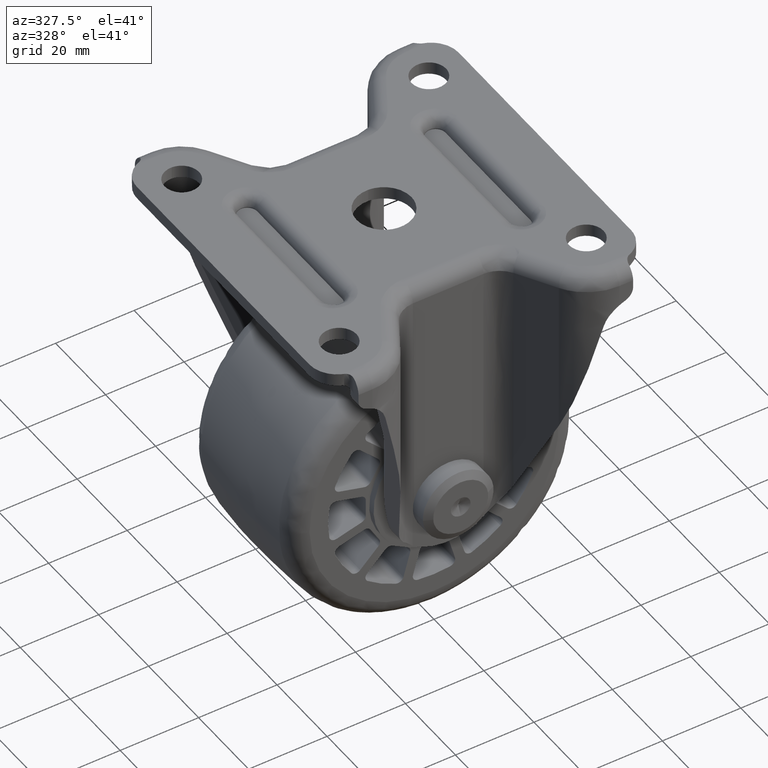
[diagram: clean part render]
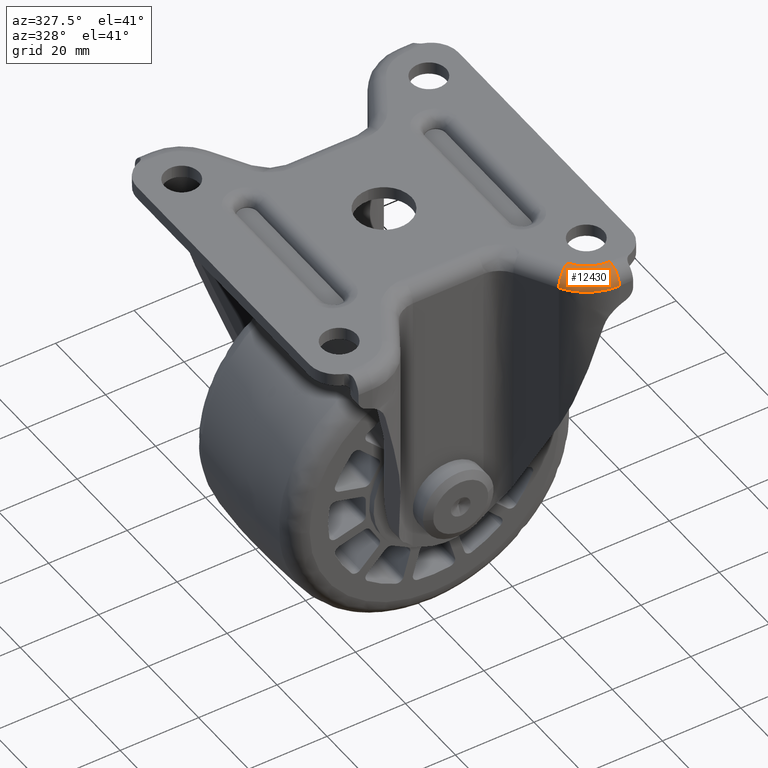
[diagram: same view with one face highlighted and labeled with its STEP entity id]
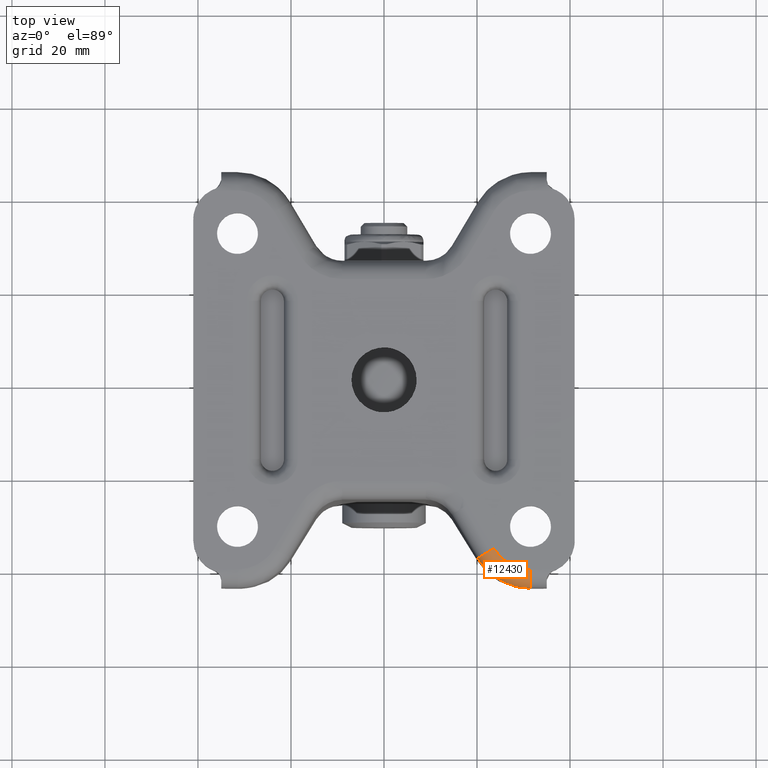
[diagram: same view with one face highlighted and labeled with its STEP entity id]
A machine part, auxiliary view. The second image highlights one B-rep face of the part: STEP entity #12430.
A second angle (top view) of the same face is appended — the face is thin or edge-on in the first view.
In plain terms, the highlighted face is a freeform B-spline surface patch.
Its self-contained STEP definition (entity closure, byte-faithful):
#12332=CARTESIAN_POINT('',(20.182173826665501,-38.293392412047062,-4.0));
#12333=VERTEX_POINT('',#12332);
#12334=CARTESIAN_POINT('',(23.620822159081300,-36.249940027973949,0.0));
#12335=VERTEX_POINT('',#12334);
#12336=CARTESIAN_POINT('',(20.182173826665480,-38.293392412047048,-4.0));
#12337=CARTESIAN_POINT('',(20.182173867288256,-38.293392480405572,-2.343145750507619));
#12338=CARTESIAN_POINT('',(21.189330645737030,-37.694879134142383,-1.171572875253811));
#12339=CARTESIAN_POINT('',(22.196487424185801,-37.096365787879186,-4.336809E-015));
#12340=CARTESIAN_POINT('',(23.620822159081289,-36.249940027973942,-4.336809E-015));
#12348=(BOUNDED_CURVE()B_SPLINE_CURVE(2,(#12336,#12337,#12338,#12339,#12340),.UNSPECIFIED.,.F.,.U.)B_SPLINE_CURVE_WITH_KNOTS((3,2,3),(0.0,0.500000000000000,1.0),.UNSPECIFIED.)CURVE()GEOMETRIC_REPRESENTATION_ITEM()RATIONAL_B_SPLINE_CURVE((1.0,0.923879532511287,1.0,0.923879532511287,1.0))REPRESENTATION_ITEM(''));
#12349=EDGE_CURVE('',#12333,#12335,#12348,.T.);
#12365=CARTESIAN_POINT('',(31.967580638316974,-40.460348752528326,-0.009734858176361));
#12366=CARTESIAN_POINT('',(26.301757526730810,-40.738775599273431,-0.009734858176361));
#12367=CARTESIAN_POINT('',(23.646368085745348,-35.725993940605768,-0.009734858176361));
#12368=CARTESIAN_POINT('',(32.192781766370125,-45.043059690769724,0.310958431731678));
#12369=CARTESIAN_POINT('',(23.612950757367962,-45.464685153900980,0.310958431731678));
#12370=CARTESIAN_POINT('',(19.591859343455802,-37.873763469733923,0.310958431731678));
#12371=CARTESIAN_POINT('',(32.177125830784959,-44.724470579450475,-4.277402402768530));
#12372=CARTESIAN_POINT('',(23.799876044758918,-45.136140904552853,-4.277402402768529));
#12373=CARTESIAN_POINT('',(19.873727947967410,-37.724450978759720,-4.277402402768529));
#12381=(BOUNDED_SURFACE()B_SPLINE_SURFACE(2,2,((#12365,#12368,#12371),(#12366,#12369,#12372),(#12367,#12370,#12373)),.UNSPECIFIED.,.F.,.F.,.U.)B_SPLINE_SURFACE_WITH_KNOTS((3,3),(3,3),(0.0,15.354118115742279),(0.0,7.289482965597594),.UNSPECIFIED.)GEOMETRIC_REPRESENTATION_ITEM()RATIONAL_B_SPLINE_SURFACE(((0.846861723685021,0.557277055982469,0.851578637426920),(0.715051792407128,0.470539577599142,0.719034541339383),(0.847874996564845,0.557943839840544,0.852597554109784)))REPRESENTATION_ITEM('')SURFACE());
#12382=CARTESIAN_POINT('',(31.529712999999902,-44.750000000000000,-4.0));
#12383=VERTEX_POINT('',#12382);
#12384=CARTESIAN_POINT('',(31.529712999999902,-40.749998999999903,0.0));
#12385=VERTEX_POINT('',#12384);
#12386=CARTESIAN_POINT('',(31.529712999999902,-44.750000000000000,-4.0));
#12387=CARTESIAN_POINT('',(31.529712999999905,-44.750000000000000,-2.343145457614364));
#12388=CARTESIAN_POINT('',(31.529712999999902,-43.578426771192753,-1.171572521700406));
#12389=CARTESIAN_POINT('',(31.529712999999905,-42.406853542385484,0.000000414213553));
#12390=CARTESIAN_POINT('',(31.529712999999902,-40.749998999999903,-1.249001E-013));
#12398=(BOUNDED_CURVE()B_SPLINE_CURVE(2,(#12386,#12387,#12388,#12389,#12390),.UNSPECIFIED.,.F.,.U.)B_SPLINE_CURVE_WITH_KNOTS((3,2,3),(0.0,0.500000000000000,1.0),.UNSPECIFIED.)CURVE()GEOMETRIC_REPRESENTATION_ITEM()RATIONAL_B_SPLINE_CURVE((1.0,0.923879508593568,1.0,0.923879508593568,1.0))REPRESENTATION_ITEM(''));
#12399=EDGE_CURVE('',#12383,#12385,#12398,.T.);
#12400=ORIENTED_EDGE('',*,*,#12399,.T.);
#12401=CARTESIAN_POINT('',(23.620822159081300,-36.249940027973963,0.0));
#12402=CARTESIAN_POINT('',(26.295029227600018,-40.749998999999903,0.0));
#12403=CARTESIAN_POINT('',(31.529712999999902,-40.749998999999903,0.0));
#12411=(BOUNDED_CURVE()B_SPLINE_CURVE(2,(#12401,#12402,#12403),.UNSPECIFIED.,.F.,.U.)CURVE()GEOMETRIC_REPRESENTATION_ITEM()QUASI_UNIFORM_CURVE()RATIONAL_B_SPLINE_CURVE((1.0,0.869155669375335,1.0))REPRESENTATION_ITEM(''));
#12412=EDGE_CURVE('',#12335,#12385,#12411,.T.);
#12413=ORIENTED_EDGE('',*,*,#12412,.F.);
#12414=ORIENTED_EDGE('',*,*,#12349,.F.);
#12415=CARTESIAN_POINT('',(31.529712999999902,-44.750000000000000,-4.0));
#12416=CARTESIAN_POINT('',(24.019079579032915,-44.749999499999937,-4.0));
#12417=CARTESIAN_POINT('',(20.182173826665501,-38.293392412047062,-4.0));
#12425=(BOUNDED_CURVE()B_SPLINE_CURVE(2,(#12415,#12416,#12417),.UNSPECIFIED.,.F.,.U.)CURVE()GEOMETRIC_REPRESENTATION_ITEM()QUASI_UNIFORM_CURVE()RATIONAL_B_SPLINE_CURVE((1.0,0.869155664215651,1.0))REPRESENTATION_ITEM(''));
#12426=EDGE_CURVE('',#12383,#12333,#12425,.T.);
#12427=ORIENTED_EDGE('',*,*,#12426,.F.);
#12428=EDGE_LOOP('',(#12400,#12413,#12414,#12427));
#12429=FACE_OUTER_BOUND('',#12428,.T.);
#12430=ADVANCED_FACE('',(#12429),#12381,.T.);